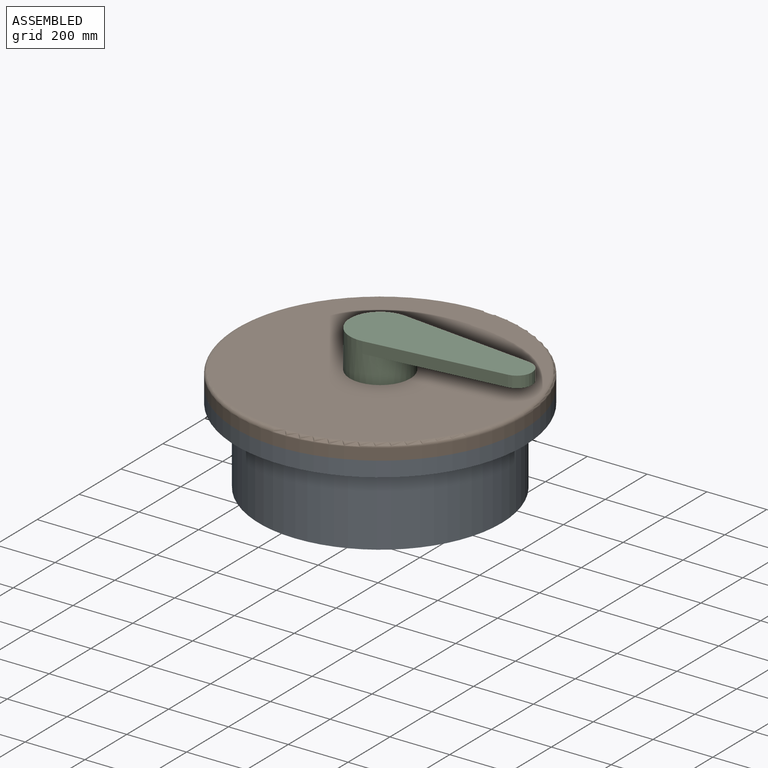
[diagram: assembled view]
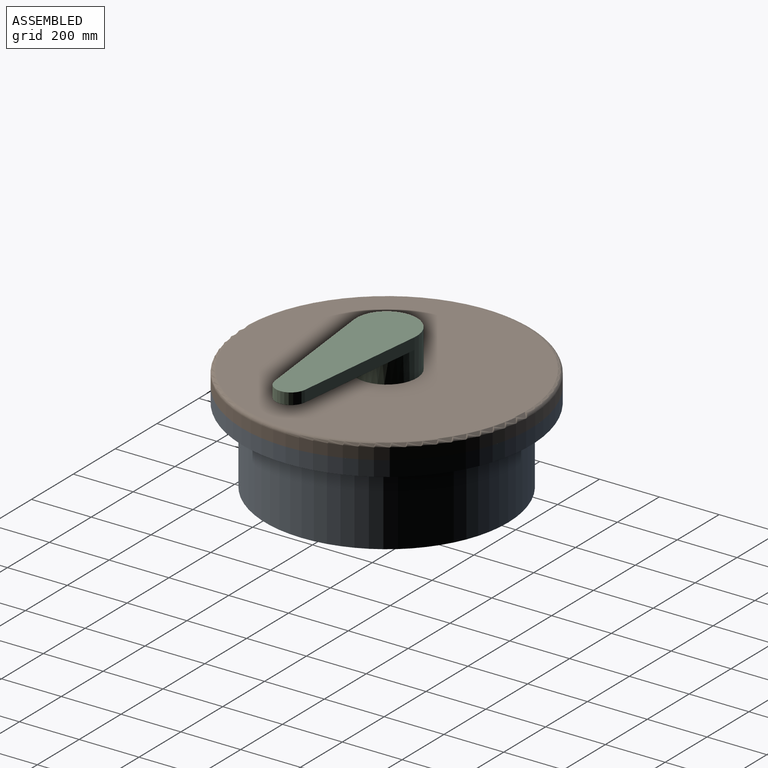
[diagram: assembled view, second angle]
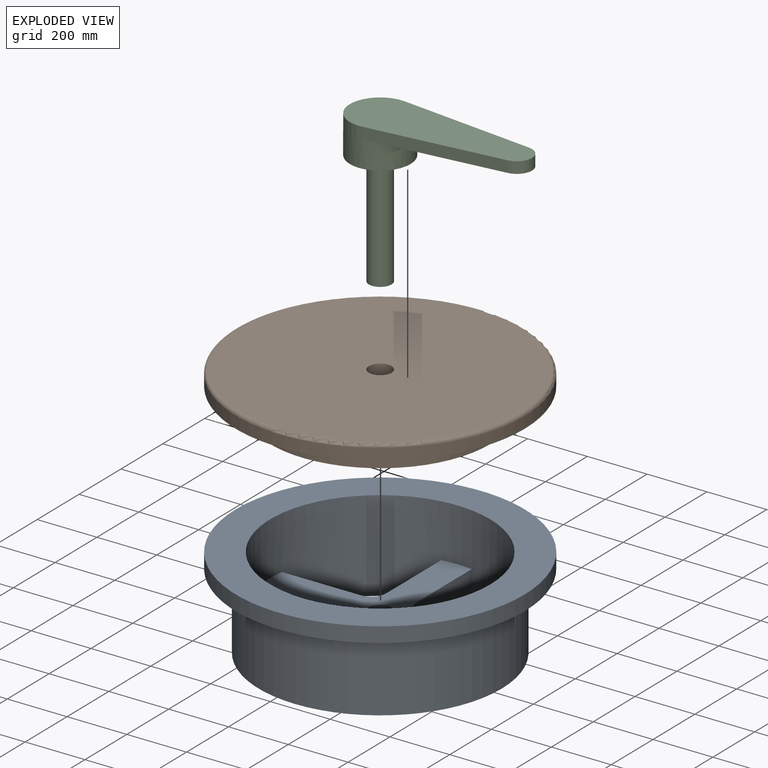
[diagram: exploded view]
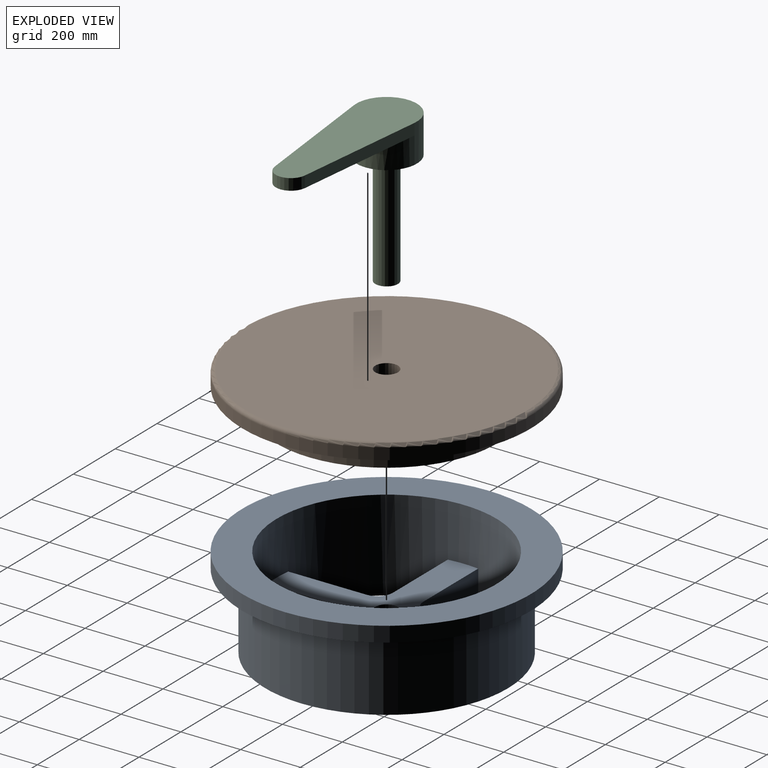
[diagram: exploded view, second angle]
ASSEMBLY  parts=3 mates=2
PART A: 20 faces, bbox 965.2x965.2x304.8 mm
  f0: cylinder r=406.4mm len=812.8mm, axis (0,0,-1), area 648585.6mm2, adj f2,f15
  f1: cylinder r=368.3mm len=736.6mm, axis (0,0,-1), area 653558.9mm2, adj f2,f3,f4,f5,f6,f7,f8,f9
  f2: plane 812.8x812.8mm, normal (0,0,-1), area 229260.9mm2, adj f0,f1,f3,f4,f5,f6,f7,f8
  f3: plane 263.18x127mm, normal (0,1,0), area 33423.8mm2, adj f1,f2,f12,f17
  f4: plane 263.18x127mm, normal (1,0,0), area 33423.8mm2, adj f1,f2,f12,f17
  f5: plane 263.18x127mm, normal (-1,0,0), area 33423.8mm2, adj f1,f2,f12,f19
  f6: plane 263.18x127mm, normal (0,1,0), area 33423.8mm2, adj f1,f2,f12,f19
  f7: plane 263.18x127mm, normal (0,-1,0), area 33423.8mm2, adj f1,f2,f12,f18
  f8: plane 263.18x127mm, normal (-1,0,0), area 33423.8mm2, adj f1,f2,f12,f18
  f9: plane 263.18x127mm, normal (1,0,0), area 33423.8mm2, adj f1,f2,f12,f16
  f10: plane 263.18x127mm, normal (0,-1,0), area 33423.8mm2, adj f1,f2,f12,f16
  f11: cylinder r=38.1mm len=127mm, axis (0,0,-1), area 30402.4mm2, adj f2,f12
  f12: plane 736.6x736.6mm, normal (0,0,1), area 136533.5mm2, adj f1,f3,f4,f5,f6,f7,f8,f9
  f13: cylinder r=482.6mm len=965.2mm, axis (0,0,-1), area 154039.1mm2, adj f14,f15
  f14: plane 965.2x965.2mm, normal (0,0,1), area 305544.6mm2, adj f1,f13
  f15: plane 965.2x965.2mm, normal (0,0,-1), area 212817.1mm2, adj f0,f13
  f16: cylinder r=50.8mm len=127mm, axis (0,0,-1), area 10134.1mm2, adj f2,f9,f10,f12
  f17: cylinder r=50.8mm len=127mm, axis (0,0,1), area 10134.1mm2, adj f2,f3,f4,f12
  f18: cylinder r=50.8mm len=127mm, axis (0,0,1), area 10134.1mm2, adj f2,f7,f8,f12
  f19: cylinder r=50.8mm len=127mm, axis (0,0,-1), area 10134.1mm2, adj f2,f5,f6,f12
PART B: 7 faces, bbox 1044.7x1044.7x127 mm
  f0: cylinder r=482.6mm len=965.2mm, axis (0,0,1), area 115529.3mm2, adj f3,f6
  f1: cylinder r=38.1mm len=127mm, axis (0,0,1), area 30402.4mm2, adj f2,f5
  f2: plane 939.8x939.8mm, normal (0,0,-1), area 689122.2mm2, adj f1,f6
  f3: plane 965.2x965.2mm, normal (0,0,1), area 305544.6mm2, adj f0,f4
  f4: cylinder r=368.3mm len=736.6mm, axis (0,0,-1), area 176334.2mm2, adj f3,f5
  f5: plane 736.6x736.6mm, normal (0,0,1), area 421580.6mm2, adj f1,f4
  f6: torus R=469.9mm, axis (0,0,1), area 59912.5mm2, adj f0,f2
PART C: 9 faces, bbox 609.6x203.2x508 mm
  f0: cylinder r=101.6mm len=203.2mm, axis (0,0,-1), area 69774.2mm2, adj f1,f2,f3,f5,f6
  f1: plane 203.2x203.2mm, normal (0,0,1), area 27868.9mm2, adj f0,f7
  f2: plane 609.6x203.2mm, normal (0,0,-1), area 90376.1mm2, adj f0,f3,f4,f5
  f3: plane 451.56x50.49mm, normal (0.11,-0.99,0), area 17311.5mm2, adj f0,f2,f4,f6
  f4: cylinder r=50.8mm len=100.97mm, axis (0,0,-1), area 5649.5mm2, adj f2,f3,f5,f6
  f5: plane 451.56x50.49mm, normal (0.11,0.99,0), area 17311.5mm2, adj f0,f2,f4,f6
  f6: plane 496.71x201.94mm, normal (0,0,1), area 57946.9mm2, adj f0,f3,f4,f5
  f7: cylinder r=38.1mm len=381mm, axis (0,0,-1), area 91207.3mm2, adj f1,f8
  f8: plane 76.2x76.2mm, normal (0,0,1), area 4560.4mm2, adj f7
PLACE A t=(-55929.62,-3042.95,-7777.69)mm
PLACE B rot(axis=(1,0,0),180deg) t=(-58215.62,12959.05,-7472.89)mm
PLACE C rot(axis=(1,0,0),180deg) t=(-57809.22,14737.05,-7295.09)mm
MATE fastened B.f0 <-> A.f0  axis (0,0,-1) through (18492.38,5593.05,-7472.89)mm
MATE fastened C.f0 <-> B.f0  axis (0,0,1) through (18492.38,5593.05,-7422.09)mm
